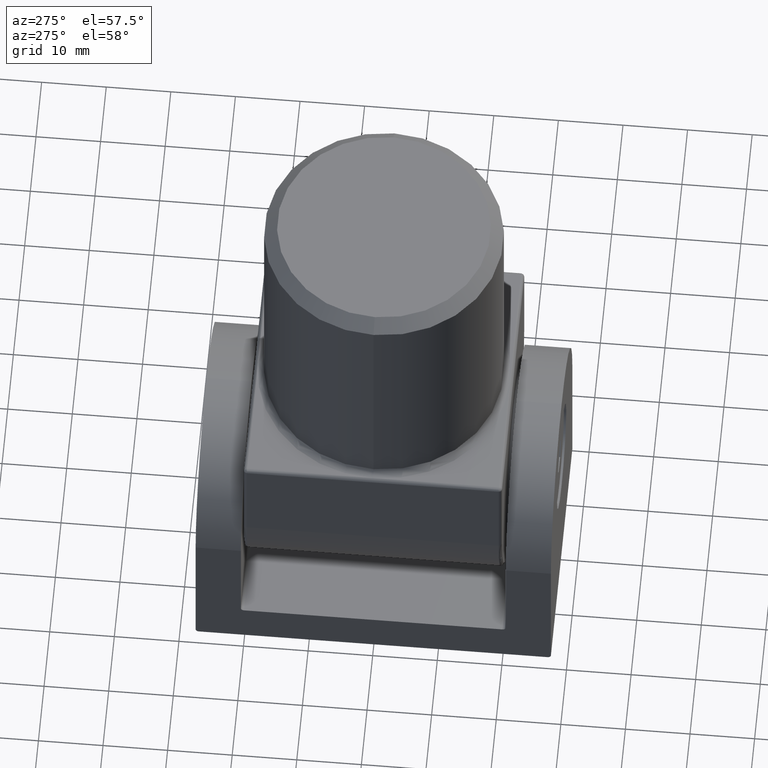
[diagram: clean part render]
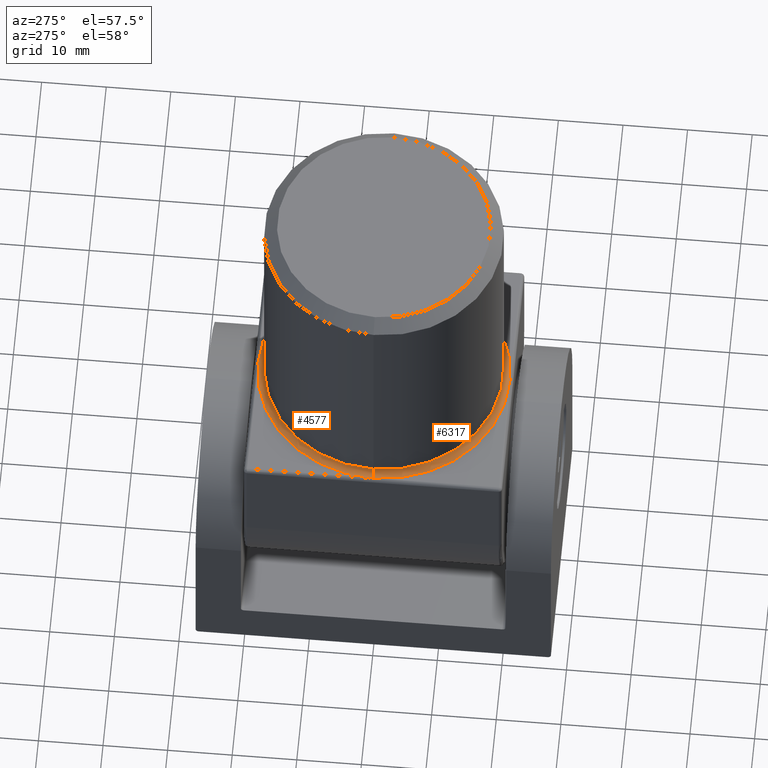
[diagram: same view with one multi-face feature highlighted, each face labeled with its STEP entity id]
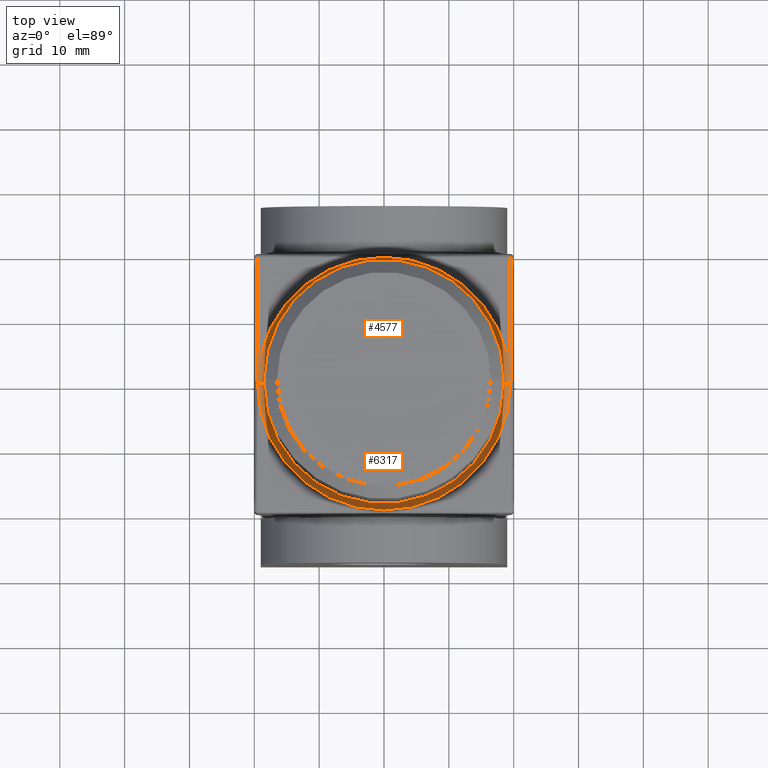
[diagram: same view with one multi-face feature highlighted, each face labeled with its STEP entity id]
A machine part, auxiliary view. The highlighted faces form ONE feature: a constant-radius fillet chain: 2 tangent blend faces with common blend radius 1 mm. The faces share edges in the B-rep.
A second angle (top view) of the same feature is appended — it is thin or edge-on in the first view.
Their STEP definitions:
[1] entity #4577 (Torus):
#325 = DIRECTION ( 'NONE',  ( 0.000000000000000000, 0.000000000000000000, -1.000000000000000000 ) ) ;
#1796 = CARTESIAN_POINT ( 'NONE',  ( 19.50000000000000000, 0.000000000000000000, 0.000000000000000000 ) ) ;
#1958 = ORIENTED_EDGE ( 'NONE', *, *, #5636, .T. ) ;
#2075 = CARTESIAN_POINT ( 'NONE',  ( 0.000000000000000000, 0.000000000000000000, 1.000000000000000888 ) ) ;
#2108 = CARTESIAN_POINT ( 'NONE',  ( -19.50000000000000000, 0.000000000000000000, 1.000000000000000888 ) ) ;
#2272 = DIRECTION ( 'NONE',  ( 0.000000000000000000, 0.000000000000000000, -1.000000000000000000 ) ) ;
#2307 = FACE_OUTER_BOUND ( 'NONE', #13256, .T. ) ;
#2554 = EDGE_CURVE ( 'NONE', #7469, #16868, #3315, .T. ) ;
#3173 = AXIS2_PLACEMENT_3D ( 'NONE', #2075, #2272, #18091 ) ;
#3315 = CIRCLE ( 'NONE', #6422, 1.000000000000000888 ) ;
#3335 = AXIS2_PLACEMENT_3D ( 'NONE', #3538, #5140, #19001 ) ;
#3538 = CARTESIAN_POINT ( 'NONE',  ( 0.000000000000000000, 0.000000000000000000, 0.000000000000000000 ) ) ;
#4577 = ADVANCED_FACE ( 'NONE', ( #2307 ), #9676, .F. ) ;
#5140 = DIRECTION ( 'NONE',  ( 0.000000000000000000, 0.000000000000000000, -1.000000000000000000 ) ) ;
#5287 = CIRCLE ( 'NONE', #15912, 18.50000000000000000 ) ;
#5486 = CARTESIAN_POINT ( 'NONE',  ( 0.000000000000000000, 0.000000000000000000, 1.000000000000000888 ) ) ;
#5508 = CIRCLE ( 'NONE', #18602, 1.000000000000000000 ) ;
#5636 = EDGE_CURVE ( 'NONE', #13557, #19933, #5508, .T. ) ;
#5737 = DIRECTION ( 'NONE',  ( 0.000000000000000000, 0.000000000000000000, -1.000000000000000000 ) ) ;
#5751 = DIRECTION ( 'NONE',  ( -1.000000000000000000, 0.000000000000000000, 0.000000000000000000 ) ) ;
#6121 = ORIENTED_EDGE ( 'NONE', *, *, #19509, .F. ) ;
#6422 = AXIS2_PLACEMENT_3D ( 'NONE', #10761, #12342, #7656 ) ;
#6715 = CARTESIAN_POINT ( 'NONE',  ( 0.000000000000000000, 0.000000000000000000, 0.000000000000000000 ) ) ;
#6724 = ORIENTED_EDGE ( 'NONE', *, *, #2554, .F. ) ;
#6819 = DIRECTION ( 'NONE',  ( -0.000000000000000000, -1.000000000000000000, -0.000000000000000000 ) ) ;
#7391 = CARTESIAN_POINT ( 'NONE',  ( -19.50000000000000000, 0.000000000000000000, 0.000000000000000000 ) ) ;
#7461 = EDGE_CURVE ( 'NONE', #16751, #7469, #7781, .T. ) ;
#7469 = VERTEX_POINT ( 'NONE', #1796 ) ;
#7656 = DIRECTION ( 'NONE',  ( -1.000000000000000000, -1.224646799147353454E-16, 0.000000000000000000 ) ) ;
#7781 = CIRCLE ( 'NONE', #13522, 19.50000000000000000 ) ;
#9153 = ORIENTED_EDGE ( 'NONE', *, *, #7461, .F. ) ;
#9676 = TOROIDAL_SURFACE ( 'NONE', #3173, 19.50000000000000000, 1.000000000000000000 ) ;
#9923 = EDGE_CURVE ( 'NONE', #16868, #19933, #5287, .T. ) ;
#10761 = CARTESIAN_POINT ( 'NONE',  ( 19.50000000000000000, 2.388061258337338939E-15, 1.000000000000000888 ) ) ;
#12342 = DIRECTION ( 'NONE',  ( -1.224646799147353207E-16, 1.000000000000000000, 0.000000000000000000 ) ) ;
#12800 = CARTESIAN_POINT ( 'NONE',  ( -18.50000000000000000, 0.000000000000000000, 1.000000000000000888 ) ) ;
#13187 = CARTESIAN_POINT ( 'NONE',  ( 18.50000000000000000, 2.265596578422603396E-15, 1.000000000000000888 ) ) ;
#13256 = EDGE_LOOP ( 'NONE', ( #6724, #9153, #6121, #1958, #19133 ) ) ;
#13522 = AXIS2_PLACEMENT_3D ( 'NONE', #6715, #325, #17760 ) ;
#13557 = VERTEX_POINT ( 'NONE', #7391 ) ;
#15912 = AXIS2_PLACEMENT_3D ( 'NONE', #5486, #18146, #5751 ) ;
#16095 = CARTESIAN_POINT ( 'NONE',  ( 0.000000000000000000, 19.50000000000000000, 0.000000000000000000 ) ) ;
#16751 = VERTEX_POINT ( 'NONE', #16095 ) ;
#16868 = VERTEX_POINT ( 'NONE', #13187 ) ;
#17708 = CIRCLE ( 'NONE', #3335, 19.50000000000000000 ) ;
#17760 = DIRECTION ( 'NONE',  ( -1.000000000000000000, 0.000000000000000000, 0.000000000000000000 ) ) ;
#18091 = DIRECTION ( 'NONE',  ( -1.000000000000000000, 0.000000000000000000, 0.000000000000000000 ) ) ;
#18146 = DIRECTION ( 'NONE',  ( -0.000000000000000000, -0.000000000000000000, 1.000000000000000000 ) ) ;
#18602 = AXIS2_PLACEMENT_3D ( 'NONE', #2108, #6819, #5737 ) ;
#19001 = DIRECTION ( 'NONE',  ( -1.000000000000000000, 0.000000000000000000, 0.000000000000000000 ) ) ;
#19133 = ORIENTED_EDGE ( 'NONE', *, *, #9923, .F. ) ;
#19509 = EDGE_CURVE ( 'NONE', #13557, #16751, #17708, .T. ) ;
#19933 = VERTEX_POINT ( 'NONE', #12800 ) ;
[2] entity #6317 (Torus):
#85 = CIRCLE ( 'NONE', #8789, 18.50000000000000000 ) ;
#314 = DIRECTION ( 'NONE',  ( -1.000000000000000000, 0.000000000000000000, 0.000000000000000000 ) ) ;
#1218 = AXIS2_PLACEMENT_3D ( 'NONE', #9776, #19059, #3397 ) ;
#1796 = CARTESIAN_POINT ( 'NONE',  ( 19.50000000000000000, 0.000000000000000000, 0.000000000000000000 ) ) ;
#2108 = CARTESIAN_POINT ( 'NONE',  ( -19.50000000000000000, 0.000000000000000000, 1.000000000000000888 ) ) ;
#2341 = ORIENTED_EDGE ( 'NONE', *, *, #5636, .F. ) ;
#2420 = CIRCLE ( 'NONE', #4832, 19.50000000000000000 ) ;
#2441 = TOROIDAL_SURFACE ( 'NONE', #1218, 19.50000000000000000, 1.000000000000000000 ) ;
#2447 = DIRECTION ( 'NONE',  ( -1.000000000000000000, 0.000000000000000000, 0.000000000000000000 ) ) ;
#2554 = EDGE_CURVE ( 'NONE', #7469, #16868, #3315, .T. ) ;
#3231 = CIRCLE ( 'NONE', #11464, 19.50000000000000000 ) ;
#3315 = CIRCLE ( 'NONE', #6422, 1.000000000000000888 ) ;
#3397 = DIRECTION ( 'NONE',  ( -1.000000000000000000, 0.000000000000000000, 0.000000000000000000 ) ) ;
#4832 = AXIS2_PLACEMENT_3D ( 'NONE', #4900, #11406, #17696 ) ;
#4900 = CARTESIAN_POINT ( 'NONE',  ( 0.000000000000000000, 0.000000000000000000, 0.000000000000000000 ) ) ;
#5508 = CIRCLE ( 'NONE', #18602, 1.000000000000000000 ) ;
#5636 = EDGE_CURVE ( 'NONE', #13557, #19933, #5508, .T. ) ;
#5737 = DIRECTION ( 'NONE',  ( 0.000000000000000000, 0.000000000000000000, -1.000000000000000000 ) ) ;
#6317 = ADVANCED_FACE ( 'NONE', ( #16463 ), #2441, .F. ) ;
#6422 = AXIS2_PLACEMENT_3D ( 'NONE', #10761, #12342, #7656 ) ;
#6819 = DIRECTION ( 'NONE',  ( -0.000000000000000000, -1.000000000000000000, -0.000000000000000000 ) ) ;
#6859 = ORIENTED_EDGE ( 'NONE', *, *, #9449, .F. ) ;
#6968 = CARTESIAN_POINT ( 'NONE',  ( 0.000000000000000000, -19.50000000000000000, 0.000000000000000000 ) ) ;
#7369 = EDGE_CURVE ( 'NONE', #7469, #16227, #2420, .T. ) ;
#7391 = CARTESIAN_POINT ( 'NONE',  ( -19.50000000000000000, 0.000000000000000000, 0.000000000000000000 ) ) ;
#7469 = VERTEX_POINT ( 'NONE', #1796 ) ;
#7555 = ORIENTED_EDGE ( 'NONE', *, *, #16580, .F. ) ;
#7656 = DIRECTION ( 'NONE',  ( -1.000000000000000000, -1.224646799147353454E-16, 0.000000000000000000 ) ) ;
#8152 = DIRECTION ( 'NONE',  ( -0.000000000000000000, -0.000000000000000000, 1.000000000000000000 ) ) ;
#8789 = AXIS2_PLACEMENT_3D ( 'NONE', #17608, #8152, #314 ) ;
#9449 = EDGE_CURVE ( 'NONE', #19933, #16868, #85, .T. ) ;
#9776 = CARTESIAN_POINT ( 'NONE',  ( 0.000000000000000000, 0.000000000000000000, 1.000000000000000888 ) ) ;
#10761 = CARTESIAN_POINT ( 'NONE',  ( 19.50000000000000000, 2.388061258337338939E-15, 1.000000000000000888 ) ) ;
#11406 = DIRECTION ( 'NONE',  ( 0.000000000000000000, 0.000000000000000000, -1.000000000000000000 ) ) ;
#11464 = AXIS2_PLACEMENT_3D ( 'NONE', #18309, #13549, #2447 ) ;
#12342 = DIRECTION ( 'NONE',  ( -1.224646799147353207E-16, 1.000000000000000000, 0.000000000000000000 ) ) ;
#12800 = CARTESIAN_POINT ( 'NONE',  ( -18.50000000000000000, 0.000000000000000000, 1.000000000000000888 ) ) ;
#12914 = ORIENTED_EDGE ( 'NONE', *, *, #7369, .F. ) ;
#13187 = CARTESIAN_POINT ( 'NONE',  ( 18.50000000000000000, 2.265596578422603396E-15, 1.000000000000000888 ) ) ;
#13549 = DIRECTION ( 'NONE',  ( 0.000000000000000000, 0.000000000000000000, -1.000000000000000000 ) ) ;
#13557 = VERTEX_POINT ( 'NONE', #7391 ) ;
#13626 = EDGE_LOOP ( 'NONE', ( #12914, #14044, #6859, #2341, #7555 ) ) ;
#14044 = ORIENTED_EDGE ( 'NONE', *, *, #2554, .T. ) ;
#16227 = VERTEX_POINT ( 'NONE', #6968 ) ;
#16463 = FACE_OUTER_BOUND ( 'NONE', #13626, .T. ) ;
#16580 = EDGE_CURVE ( 'NONE', #16227, #13557, #3231, .T. ) ;
#16868 = VERTEX_POINT ( 'NONE', #13187 ) ;
#17608 = CARTESIAN_POINT ( 'NONE',  ( 0.000000000000000000, 0.000000000000000000, 1.000000000000000888 ) ) ;
#17696 = DIRECTION ( 'NONE',  ( -1.000000000000000000, 0.000000000000000000, 0.000000000000000000 ) ) ;
#18309 = CARTESIAN_POINT ( 'NONE',  ( 0.000000000000000000, 0.000000000000000000, 0.000000000000000000 ) ) ;
#18602 = AXIS2_PLACEMENT_3D ( 'NONE', #2108, #6819, #5737 ) ;
#19059 = DIRECTION ( 'NONE',  ( 0.000000000000000000, 0.000000000000000000, -1.000000000000000000 ) ) ;
#19933 = VERTEX_POINT ( 'NONE', #12800 ) ;